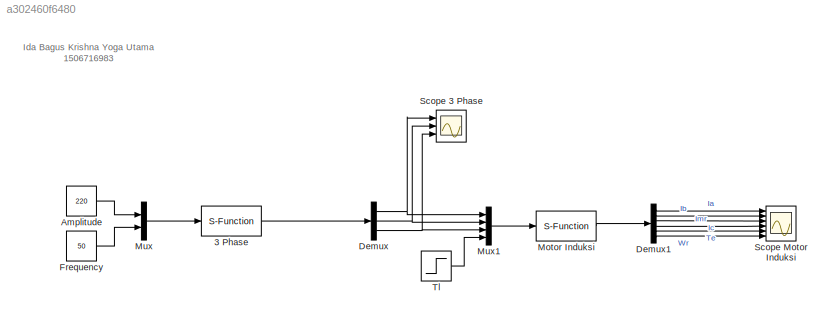
MODEL slx_a302460f6480
KIND model
CONFIG AbsTol = auto
CONFIG FixedStep = auto
CONFIG MaxStep = auto
CONFIG MinStep = auto
CONFIG RelTol = 1e-3
CONFIG SampleTimeConstraint = Unconstrained
CONFIG Solver = VariableStepAuto
CONFIG SolverMode = Auto
CONFIG SolverName = VariableStepAuto
CONFIG StartTime = 0.0
CONFIG StopTime = 10.0
BLOCK [S-Function] 3 Phase
  EnableBusSupport = off
  FunctionName = phase3
  Ports = [1, 1]
  SFunctionDeploymentMode = off
BLOCK [Constant] Amplitude
  Value = 220
BLOCK [Demux] Demux
  DisplayOption = bar
  Outputs = 3
  Ports = [1, 3]
BLOCK [Demux] Demux1
  DisplayOption = bar
  Outputs = 6
  Ports = [1, 6]
BLOCK [Constant] Frequency
  Value = 50
BLOCK [S-Function] Motor Induksi
  EnableBusSupport = off
  FunctionName = motor_induksi
  Ports = [1, 1]
  SFunctionDeploymentMode = off
BLOCK [Mux] Mux
  DisplayOption = bar
  Inputs = 2
  Ports = [2, 1]
BLOCK [Mux] Mux1
  DisplayOption = bar
  Ports = [4, 1]
BLOCK [Scope] Scope 3 Phase
  NumInputPorts = 3
  Ports = [3]
  ScopeSpecificationString = Simulink.scopes.TimeScopeBlockCfg('CurrentConfiguration', extmgr.ConfigurationSet(extmgr.Configuration('Core','General UI',true),extmgr.Configuration('Core','Source UI',true),extmgr.Configuration('Sources','WiredSimulink',true,'DataLoggingVariableName','ScopeData1'),extmgr.Configuration('Visuals','Time Domain',true,'SerializedDisplays',{struct('MinYLimReal','-274.99995','MaxYLimReal','274.99999','...<+1419ch>
BLOCK [Scope] Scope Motor Induksi
  NumInputPorts = 6
  Ports = [6]
  ScopeSpecificationString = Simulink.scopes.TimeScopeBlockCfg('CurrentConfiguration', extmgr.ConfigurationSet(extmgr.Configuration('Core','General UI',true),extmgr.Configuration('Core','Source UI',true),extmgr.Configuration('Sources','WiredSimulink',true),extmgr.Configuration('Visuals','Time Domain',true,'SerializedDisplays',{struct('MinYLimReal','-155.32653','MaxYLimReal','34.82226','YLabelReal','','MinYLimMag',' 0.00000','...<+4735ch>
BLOCK [Step] Tl
  SampleTime = 0
  Time = 10
ANNOTATION (root): Ida Bagus Krishna Yoga Utama 1506716983
LINE 3 Phase:1 -> Demux:1
LINE Amplitude:1 -> Mux:1
LINE Demux1:1 -> Scope Motor Induksi:1
LINE Demux1:2 -> Scope Motor Induksi:2
LINE Demux1:3 -> Scope Motor Induksi:3
LINE Demux1:4 -> Scope Motor Induksi:4
LINE Demux1:5 -> Scope Motor Induksi:5
LINE Demux1:6 -> Scope Motor Induksi:6
NET Demux:1 -> Mux1:1, Scope 3 Phase:1
NET Demux:2 -> Mux1:2, Scope 3 Phase:2
NET Demux:3 -> Mux1:3, Scope 3 Phase:3
LINE Frequency:1 -> Mux:2
LINE Motor Induksi:1 -> Demux1:1
LINE Mux1:1 -> Motor Induksi:1
LINE Mux:1 -> 3 Phase:1
LINE Tl:1 -> Mux1:4
note: NET lines group one-source signal fan-out (src -> all destinations, sorted); 1:1 wires keep LINE
